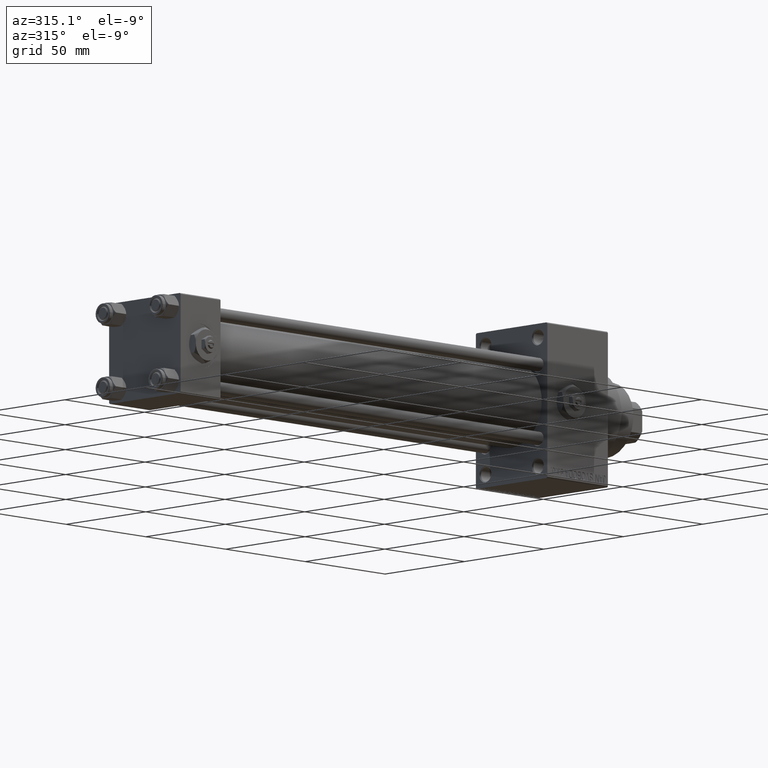
[diagram: clean part render]
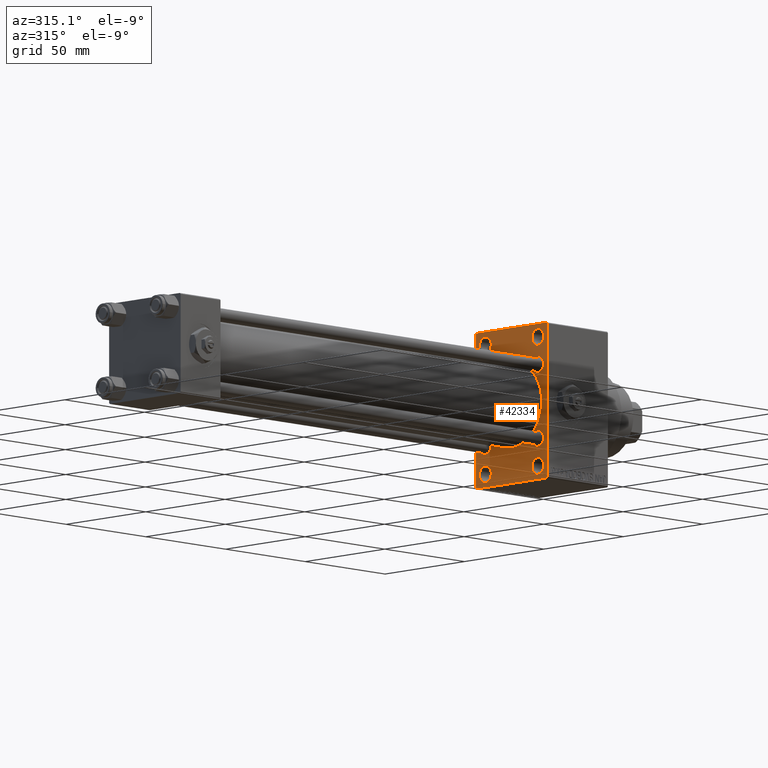
[diagram: same view with one face highlighted and labeled with its STEP entity id]
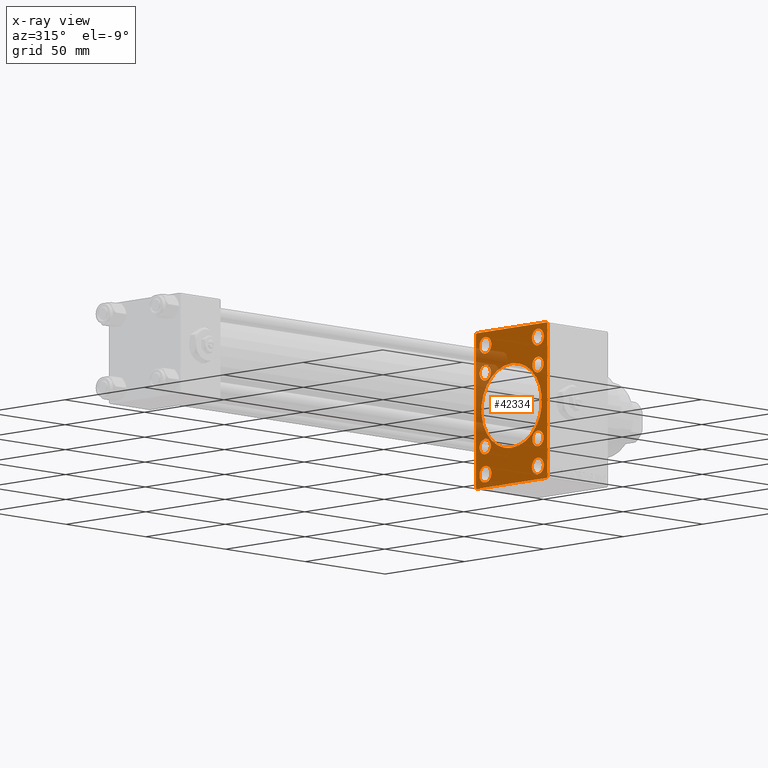
[diagram: x-ray of the same camera — body ghosted, the highlighted face saturated]
A machine part, auxiliary view. The second image highlights one B-rep face of the part: STEP entity #42334.
The next image is the same camera in x-ray: the body ghosted, the highlighted face saturated — about 18% of this face is hidden behind the body in this view.
In plain terms, the highlighted planar face has unit normal (-1, 0, 0).
Its self-contained STEP definition (entity closure, byte-faithful):
#86 = ORIENTED_EDGE ( 'NONE', *, *, #27091, .T. ) ;
#116 = VERTEX_POINT ( 'NONE', #18968 ) ;
#410 = CIRCLE ( 'NONE', #8321, 3.500000000000006661 ) ;
#741 = CARTESIAN_POINT ( 'NONE',  ( 229.9999999999999716, 16.50000000000000000, -32.75000000000000000 ) ) ;
#941 = AXIS2_PLACEMENT_3D ( 'NONE', #19280, #34420, #23506 ) ;
#1089 = VERTEX_POINT ( 'NONE', #19767 ) ;
#1310 = AXIS2_PLACEMENT_3D ( 'NONE', #16715, #47716, #6275 ) ;
#1325 = VERTEX_POINT ( 'NONE', #26838 ) ;
#1372 = CARTESIAN_POINT ( 'NONE',  ( 229.9999999999999716, -16.50000000000000000, -32.75000000000000000 ) ) ;
#1467 = AXIS2_PLACEMENT_3D ( 'NONE', #43604, #24947, #32413 ) ;
#1630 = DIRECTION ( 'NONE',  ( 0.000000000000000000, 0.000000000000000000, 1.000000000000000000 ) ) ;
#1949 = CIRCLE ( 'NONE', #13828, 3.500000000000006661 ) ;
#2417 = CARTESIAN_POINT ( 'NONE',  ( 229.9999999999999716, 16.59999999999999787, -13.09999999999999787 ) ) ;
#2866 = DIRECTION ( 'NONE',  ( 0.000000000000000000, 0.000000000000000000, 1.000000000000000000 ) ) ;
#2958 = ORIENTED_EDGE ( 'NONE', *, *, #29056, .T. ) ;
#3118 = CARTESIAN_POINT ( 'NONE',  ( 229.9999999999999716, -2.602085213965210642E-15, 0.000000000000000000 ) ) ;
#3280 = FACE_BOUND ( 'NONE', #26616, .T. ) ;
#3448 = EDGE_CURVE ( 'NONE', #1325, #26371, #13008, .T. ) ;
#3525 = CARTESIAN_POINT ( 'NONE',  ( 229.9999999999999716, 0.000000000000000000, 0.000000000000000000 ) ) ;
#3601 = CARTESIAN_POINT ( 'NONE',  ( 229.9999999999999716, -16.50000000000000000, -25.24999999999998934 ) ) ;
#3615 = DIRECTION ( 'NONE',  ( 1.000000000000000000, 0.000000000000000000, 0.000000000000000000 ) ) ;
#4023 = CARTESIAN_POINT ( 'NONE',  ( 229.9999999999999716, 22.49999999999999645, -35.00000000000000000 ) ) ;
#4064 = EDGE_CURVE ( 'NONE', #34571, #7113, #410, .T. ) ;
#4765 = ORIENTED_EDGE ( 'NONE', *, *, #26668, .T. ) ;
#4782 = DIRECTION ( 'NONE',  ( 1.000000000000000000, 0.000000000000000000, 0.000000000000000000 ) ) ;
#4887 = ORIENTED_EDGE ( 'NONE', *, *, #30488, .T. ) ;
#5295 = CIRCLE ( 'NONE', #39370, 3.750000000000006661 ) ;
#5297 = CARTESIAN_POINT ( 'NONE',  ( 229.9999999999999716, 16.59999999999999787, 16.60000000000000497 ) ) ;
#5397 = DIRECTION ( 'NONE',  ( 1.000000000000000000, 0.000000000000000000, 0.000000000000000000 ) ) ;
#6117 = DIRECTION ( 'NONE',  ( 0.000000000000000000, 0.000000000000000000, -1.000000000000000000 ) ) ;
#6275 = DIRECTION ( 'NONE',  ( 0.000000000000000000, 0.000000000000000000, 1.000000000000000000 ) ) ;
#6303 = CIRCLE ( 'NONE', #34018, 3.750000000000006661 ) ;
#6507 = PLANE ( 'NONE',  #40141 ) ;
#6664 = CIRCLE ( 'NONE', #8227, 3.500000000000006661 ) ;
#6841 = EDGE_CURVE ( 'NONE', #37190, #26652, #35355, .T. ) ;
#7080 = EDGE_CURVE ( 'NONE', #17468, #8272, #41266, .T. ) ;
#7113 = VERTEX_POINT ( 'NONE', #13195 ) ;
#7602 = EDGE_CURVE ( 'NONE', #32540, #17468, #40435, .T. ) ;
#7744 = EDGE_CURVE ( 'NONE', #20881, #12036, #5295, .T. ) ;
#8133 = AXIS2_PLACEMENT_3D ( 'NONE', #36339, #47985, #17477 ) ;
#8136 = CARTESIAN_POINT ( 'NONE',  ( 229.9999999999999716, -16.50000000000000000, -28.99999999999999289 ) ) ;
#8227 = AXIS2_PLACEMENT_3D ( 'NONE', #5297, #27856, #20413 ) ;
#8272 = VERTEX_POINT ( 'NONE', #14970 ) ;
#8321 = AXIS2_PLACEMENT_3D ( 'NONE', #47800, #36858, #2866 ) ;
#8480 = AXIS2_PLACEMENT_3D ( 'NONE', #18343, #11148, #14130 ) ;
#8792 = CARTESIAN_POINT ( 'NONE',  ( 229.9999999999999716, -16.50000000000000000, 29.00000000000000711 ) ) ;
#8892 = ORIENTED_EDGE ( 'NONE', *, *, #6841, .T. ) ;
#9038 = DIRECTION ( 'NONE',  ( 1.000000000000000000, 0.000000000000000000, 0.000000000000000000 ) ) ;
#9250 = VECTOR ( 'NONE', #21796, 1000.000000000000000 ) ;
#9257 = CARTESIAN_POINT ( 'NONE',  ( 229.9999999999999716, -16.59999999999999076, 13.10000000000000142 ) ) ;
#9288 = DIRECTION ( 'NONE',  ( 0.000000000000000000, 0.7071067811865672237, -0.7071067811865279218 ) ) ;
#9446 = EDGE_CURVE ( 'NONE', #7113, #34571, #40216, .T. ) ;
#10008 = EDGE_LOOP ( 'NONE', ( #47430, #22955 ) ) ;
#10070 = CARTESIAN_POINT ( 'NONE',  ( 229.9999999999999716, -16.50000000000000000, 29.00000000000000711 ) ) ;
#10231 = FACE_BOUND ( 'NONE', #16148, .T. ) ;
#10384 = DIRECTION ( 'NONE',  ( -0.000000000000000000, 0.7071067811865279218, 0.7071067811865672237 ) ) ;
#10793 = VERTEX_POINT ( 'NONE', #41673 ) ;
#11148 = DIRECTION ( 'NONE',  ( 1.000000000000000000, 0.000000000000000000, 0.000000000000000000 ) ) ;
#11649 = LINE ( 'NONE', #23565, #19265 ) ;
#11716 = DIRECTION ( 'NONE',  ( 0.000000000000000000, 0.000000000000000000, 1.000000000000000000 ) ) ;
#11995 = EDGE_CURVE ( 'NONE', #37916, #38535, #40282, .T. ) ;
#12018 = AXIS2_PLACEMENT_3D ( 'NONE', #27906, #43796, #1630 ) ;
#12036 = VERTEX_POINT ( 'NONE', #3601 ) ;
#12086 = AXIS2_PLACEMENT_3D ( 'NONE', #10070, #4782, #46199 ) ;
#12996 = CARTESIAN_POINT ( 'NONE',  ( 229.9999999999999716, -2.752562955852400657E-16, -19.00000000000000000 ) ) ;
#13008 = LINE ( 'NONE', #28140, #18573 ) ;
#13097 = AXIS2_PLACEMENT_3D ( 'NONE', #3118, #3615, #18737 ) ;
#13195 = CARTESIAN_POINT ( 'NONE',  ( 229.9999999999999716, 16.59999999999999787, -20.10000000000000853 ) ) ;
#13828 = AXIS2_PLACEMENT_3D ( 'NONE', #37259, #21860, #40736 ) ;
#13870 = ORIENTED_EDGE ( 'NONE', *, *, #4064, .T. ) ;
#13937 = AXIS2_PLACEMENT_3D ( 'NONE', #8792, #9038, #24655 ) ;
#14130 = DIRECTION ( 'NONE',  ( 0.000000000000000000, 0.000000000000000000, 1.000000000000000000 ) ) ;
#14332 = EDGE_CURVE ( 'NONE', #46761, #10793, #6303, .T. ) ;
#14486 = AXIS2_PLACEMENT_3D ( 'NONE', #47081, #36390, #6117 ) ;
#14670 = FACE_BOUND ( 'NONE', #34129, .T. ) ;
#14916 = DIRECTION ( 'NONE',  ( -1.000000000000000000, 0.000000000000000000, -0.000000000000000000 ) ) ;
#14970 = CARTESIAN_POINT ( 'NONE',  ( 229.9999999999999716, -21.99999999999996092, -35.00000000000000000 ) ) ;
#15204 = CIRCLE ( 'NONE', #12018, 3.750000000000003553 ) ;
#16148 = EDGE_LOOP ( 'NONE', ( #2958, #31826 ) ) ;
#16298 = CARTESIAN_POINT ( 'NONE',  ( 229.9999999999999716, 16.50000000000000000, -28.99999999999999289 ) ) ;
#16331 = ORIENTED_EDGE ( 'NONE', *, *, #7744, .T. ) ;
#16405 = ORIENTED_EDGE ( 'NONE', *, *, #3448, .T. ) ;
#16715 = CARTESIAN_POINT ( 'NONE',  ( 229.9999999999999716, -16.50000000000000000, -28.99999999999999289 ) ) ;
#16924 = CARTESIAN_POINT ( 'NONE',  ( 229.9999999999999716, -22.50000000000000355, 34.49999999999997158 ) ) ;
#17468 = VERTEX_POINT ( 'NONE', #42583 ) ;
#17477 = DIRECTION ( 'NONE',  ( 0.000000000000000000, 0.000000000000000000, 1.000000000000000000 ) ) ;
#18052 = EDGE_CURVE ( 'NONE', #26371, #32540, #19616, .T. ) ;
#18343 = CARTESIAN_POINT ( 'NONE',  ( 229.9999999999999716, 16.50000000000000000, -28.99999999999999289 ) ) ;
#18379 = CARTESIAN_POINT ( 'NONE',  ( 229.9999999999999716, -16.59999999999999076, -20.10000000000001208 ) ) ;
#18573 = VECTOR ( 'NONE', #9288, 1000.000000000000000 ) ;
#18737 = DIRECTION ( 'NONE',  ( 0.000000000000000000, 0.000000000000000000, -1.000000000000000000 ) ) ;
#18904 = DIRECTION ( 'NONE',  ( 1.000000000000000000, 0.000000000000000000, 0.000000000000000000 ) ) ;
#18968 = CARTESIAN_POINT ( 'NONE',  ( 229.9999999999999716, 16.59999999999999787, 13.09999999999999609 ) ) ;
#19125 = CIRCLE ( 'NONE', #941, 3.500000000000006661 ) ;
#19265 = VECTOR ( 'NONE', #23809, 1000.000000000000000 ) ;
#19280 = CARTESIAN_POINT ( 'NONE',  ( 229.9999999999999716, -16.59999999999999076, -16.60000000000000853 ) ) ;
#19481 = CIRCLE ( 'NONE', #1310, 3.750000000000006661 ) ;
#19616 = LINE ( 'NONE', #30049, #31653 ) ;
#19767 = CARTESIAN_POINT ( 'NONE',  ( 229.9999999999999716, -16.59999999999999076, 20.10000000000001208 ) ) ;
#20053 = CIRCLE ( 'NONE', #14486, 19.00000000000000000 ) ;
#20413 = DIRECTION ( 'NONE',  ( 0.000000000000000000, 0.000000000000000000, 1.000000000000000000 ) ) ;
#20767 = CARTESIAN_POINT ( 'NONE',  ( 229.9999999999999716, -16.50000000000000000, 32.75000000000001421 ) ) ;
#20810 = CARTESIAN_POINT ( 'NONE',  ( 229.9999999999999716, 16.50000000000000000, 25.25000000000000000 ) ) ;
#20881 = VERTEX_POINT ( 'NONE', #1372 ) ;
#21019 = EDGE_LOOP ( 'NONE', ( #4765, #26604 ) ) ;
#21263 = EDGE_LOOP ( 'NONE', ( #39560, #29970 ) ) ;
#21796 = DIRECTION ( 'NONE',  ( -0.000000000000000000, -0.7071067811865279218, -0.7071067811865672237 ) ) ;
#21835 = AXIS2_PLACEMENT_3D ( 'NONE', #30085, #45715, #11716 ) ;
#21860 = DIRECTION ( 'NONE',  ( 1.000000000000000000, 0.000000000000000000, 0.000000000000000000 ) ) ;
#22047 = ORIENTED_EDGE ( 'NONE', *, *, #11995, .T. ) ;
#22057 = DIRECTION ( 'NONE',  ( 0.000000000000000000, 0.000000000000000000, -1.000000000000000000 ) ) ;
#22369 = FACE_OUTER_BOUND ( 'NONE', #30637, .T. ) ;
#22537 = AXIS2_PLACEMENT_3D ( 'NONE', #34039, #18904, #45454 ) ;
#22750 = VERTEX_POINT ( 'NONE', #36439 ) ;
#22955 = ORIENTED_EDGE ( 'NONE', *, *, #38645, .T. ) ;
#23096 = CARTESIAN_POINT ( 'NONE',  ( 229.9999999999999716, -21.99999999999998934, 35.00000000000000000 ) ) ;
#23222 = CARTESIAN_POINT ( 'NONE',  ( 229.9999999999999716, 16.50000000000000000, 32.75000000000000711 ) ) ;
#23506 = DIRECTION ( 'NONE',  ( 0.000000000000000000, 0.000000000000000000, 1.000000000000000000 ) ) ;
#23565 = CARTESIAN_POINT ( 'NONE',  ( 229.9999999999999716, -28.49999999999937828, -28.50000000000096279 ) ) ;
#23809 = DIRECTION ( 'NONE',  ( 0.000000000000000000, -0.7071067811865672237, 0.7071067811865279218 ) ) ;
#23850 = EDGE_CURVE ( 'NONE', #22750, #29135, #19125, .T. ) ;
#24107 = EDGE_CURVE ( 'NONE', #38535, #37916, #15204, .T. ) ;
#24655 = DIRECTION ( 'NONE',  ( 0.000000000000000000, 0.000000000000000000, 1.000000000000000000 ) ) ;
#24947 = DIRECTION ( 'NONE',  ( 1.000000000000000000, 0.000000000000000000, 0.000000000000000000 ) ) ;
#25352 = FACE_BOUND ( 'NONE', #21263, .T. ) ;
#25692 = ORIENTED_EDGE ( 'NONE', *, *, #33464, .F. ) ;
#25770 = LINE ( 'NONE', #33227, #48764 ) ;
#25963 = EDGE_CURVE ( 'NONE', #26652, #37190, #29489, .T. ) ;
#26371 = VERTEX_POINT ( 'NONE', #32481 ) ;
#26604 = ORIENTED_EDGE ( 'NONE', *, *, #40525, .T. ) ;
#26616 = EDGE_LOOP ( 'NONE', ( #30146, #8892 ) ) ;
#26652 = VERTEX_POINT ( 'NONE', #20767 ) ;
#26668 = EDGE_CURVE ( 'NONE', #35294, #44513, #20053, .T. ) ;
#26838 = CARTESIAN_POINT ( 'NONE',  ( 229.9999999999999716, 21.99999999999996803, 35.00000000000000000 ) ) ;
#27091 = EDGE_CURVE ( 'NONE', #8272, #48540, #11649, .T. ) ;
#27138 = VECTOR ( 'NONE', #10384, 1000.000000000000000 ) ;
#27856 = DIRECTION ( 'NONE',  ( 1.000000000000000000, 0.000000000000000000, 0.000000000000000000 ) ) ;
#27906 = CARTESIAN_POINT ( 'NONE',  ( 229.9999999999999716, 16.50000000000000000, 29.00000000000000355 ) ) ;
#27950 = DIRECTION ( 'NONE',  ( 0.000000000000000000, 0.000000000000000000, 1.000000000000000000 ) ) ;
#28140 = CARTESIAN_POINT ( 'NONE',  ( 229.9999999999999716, 28.49999999999937472, 28.50000000000095923 ) ) ;
#29056 = EDGE_CURVE ( 'NONE', #40973, #116, #6664, .T. ) ;
#29135 = VERTEX_POINT ( 'NONE', #18379 ) ;
#29489 = CIRCLE ( 'NONE', #12086, 3.750000000000000000 ) ;
#29725 = DIRECTION ( 'NONE',  ( 0.000000000000000000, 0.000000000000000000, 1.000000000000000000 ) ) ;
#29801 = FACE_BOUND ( 'NONE', #34553, .T. ) ;
#29868 = EDGE_CURVE ( 'NONE', #1089, #48269, #42470, .T. ) ;
#29970 = ORIENTED_EDGE ( 'NONE', *, *, #14332, .T. ) ;
#30049 = CARTESIAN_POINT ( 'NONE',  ( 229.9999999999999716, 22.49999999999999645, 35.00000000000000000 ) ) ;
#30085 = CARTESIAN_POINT ( 'NONE',  ( 229.9999999999999716, -16.59999999999999076, 16.60000000000000853 ) ) ;
#30146 = ORIENTED_EDGE ( 'NONE', *, *, #25963, .T. ) ;
#30488 = EDGE_CURVE ( 'NONE', #48269, #1089, #44037, .T. ) ;
#30637 = EDGE_LOOP ( 'NONE', ( #31630, #86, #31301, #37876, #25692, #16405, #47781, #40901 ) ) ;
#31047 = EDGE_CURVE ( 'NONE', #39830, #42447, #33210, .T. ) ;
#31301 = ORIENTED_EDGE ( 'NONE', *, *, #37517, .F. ) ;
#31401 = VECTOR ( 'NONE', #41515, 1000.000000000000000 ) ;
#31630 = ORIENTED_EDGE ( 'NONE', *, *, #7080, .T. ) ;
#31653 = VECTOR ( 'NONE', #45679, 1000.000000000000000 ) ;
#31774 = CARTESIAN_POINT ( 'NONE',  ( 229.9999999999999716, -2.602085213965210642E-15, 19.00000000000000000 ) ) ;
#31826 = ORIENTED_EDGE ( 'NONE', *, *, #35012, .T. ) ;
#32413 = DIRECTION ( 'NONE',  ( 0.000000000000000000, 0.000000000000000000, 1.000000000000000000 ) ) ;
#32449 = CARTESIAN_POINT ( 'NONE',  ( 229.9999999999999716, -22.50000000000000355, -34.50000000000000000 ) ) ;
#32481 = CARTESIAN_POINT ( 'NONE',  ( 229.9999999999999716, 22.49999999999999645, 34.50000000000000000 ) ) ;
#32540 = VERTEX_POINT ( 'NONE', #43313 ) ;
#33210 = LINE ( 'NONE', #36693, #27138 ) ;
#33227 = CARTESIAN_POINT ( 'NONE',  ( 229.9999999999999716, -22.50000000000000355, 35.00000000000000000 ) ) ;
#33464 = EDGE_CURVE ( 'NONE', #1325, #42447, #47283, .T. ) ;
#34018 = AXIS2_PLACEMENT_3D ( 'NONE', #16298, #5397, #27950 ) ;
#34039 = CARTESIAN_POINT ( 'NONE',  ( 229.9999999999999716, -16.59999999999999076, -16.60000000000000853 ) ) ;
#34129 = EDGE_LOOP ( 'NONE', ( #43995, #4887 ) ) ;
#34420 = DIRECTION ( 'NONE',  ( 1.000000000000000000, 0.000000000000000000, 0.000000000000000000 ) ) ;
#34465 = CIRCLE ( 'NONE', #13097, 19.00000000000000000 ) ;
#34553 = EDGE_LOOP ( 'NONE', ( #13870, #36864 ) ) ;
#34562 = DIRECTION ( 'NONE',  ( 0.000000000000000000, 0.000000000000000000, 1.000000000000000000 ) ) ;
#34571 = VERTEX_POINT ( 'NONE', #2417 ) ;
#34644 = CIRCLE ( 'NONE', #8480, 3.750000000000006661 ) ;
#35012 = EDGE_CURVE ( 'NONE', #116, #40973, #1949, .T. ) ;
#35294 = VERTEX_POINT ( 'NONE', #31774 ) ;
#35355 = CIRCLE ( 'NONE', #13937, 3.750000000000000000 ) ;
#36339 = CARTESIAN_POINT ( 'NONE',  ( 229.9999999999999716, -16.59999999999999076, 16.60000000000000853 ) ) ;
#36390 = DIRECTION ( 'NONE',  ( 1.000000000000000000, 0.000000000000000000, 0.000000000000000000 ) ) ;
#36439 = CARTESIAN_POINT ( 'NONE',  ( 229.9999999999999716, -16.59999999999999076, -13.10000000000000142 ) ) ;
#36693 = CARTESIAN_POINT ( 'NONE',  ( 229.9999999999999716, -28.50000000000061462, 28.49999999999903011 ) ) ;
#36858 = DIRECTION ( 'NONE',  ( 1.000000000000000000, 0.000000000000000000, 0.000000000000000000 ) ) ;
#36864 = ORIENTED_EDGE ( 'NONE', *, *, #9446, .T. ) ;
#37190 = VERTEX_POINT ( 'NONE', #38242 ) ;
#37259 = CARTESIAN_POINT ( 'NONE',  ( 229.9999999999999716, 16.59999999999999787, 16.60000000000000497 ) ) ;
#37517 = EDGE_CURVE ( 'NONE', #39830, #48540, #25770, .T. ) ;
#37876 = ORIENTED_EDGE ( 'NONE', *, *, #31047, .T. ) ;
#37916 = VERTEX_POINT ( 'NONE', #23222 ) ;
#38213 = CARTESIAN_POINT ( 'NONE',  ( 229.9999999999999716, 16.59999999999999787, 20.10000000000001208 ) ) ;
#38242 = CARTESIAN_POINT ( 'NONE',  ( 229.9999999999999716, -16.50000000000000000, 25.25000000000000355 ) ) ;
#38412 = DIRECTION ( 'NONE',  ( 1.000000000000000000, 0.000000000000000000, 0.000000000000000000 ) ) ;
#38535 = VERTEX_POINT ( 'NONE', #20810 ) ;
#38548 = DIRECTION ( 'NONE',  ( 1.000000000000000000, 0.000000000000000000, 0.000000000000000000 ) ) ;
#38645 = EDGE_CURVE ( 'NONE', #29135, #22750, #46311, .T. ) ;
#39058 = CARTESIAN_POINT ( 'NONE',  ( 229.9999999999999716, 16.59999999999999787, -16.60000000000000497 ) ) ;
#39370 = AXIS2_PLACEMENT_3D ( 'NONE', #8136, #38412, #29725 ) ;
#39560 = ORIENTED_EDGE ( 'NONE', *, *, #44916, .T. ) ;
#39830 = VERTEX_POINT ( 'NONE', #16924 ) ;
#40141 = AXIS2_PLACEMENT_3D ( 'NONE', #3525, #14916, #45205 ) ;
#40216 = CIRCLE ( 'NONE', #41795, 3.500000000000006661 ) ;
#40282 = CIRCLE ( 'NONE', #1467, 3.750000000000003553 ) ;
#40435 = LINE ( 'NONE', #40914, #9250 ) ;
#40525 = EDGE_CURVE ( 'NONE', #44513, #35294, #34465, .T. ) ;
#40736 = DIRECTION ( 'NONE',  ( 0.000000000000000000, 0.000000000000000000, 1.000000000000000000 ) ) ;
#40901 = ORIENTED_EDGE ( 'NONE', *, *, #7602, .T. ) ;
#40914 = CARTESIAN_POINT ( 'NONE',  ( 229.9999999999999716, 28.50000000000060751, -28.49999999999902656 ) ) ;
#40973 = VERTEX_POINT ( 'NONE', #38213 ) ;
#41266 = LINE ( 'NONE', #4023, #31401 ) ;
#41515 = DIRECTION ( 'NONE',  ( 0.000000000000000000, -1.000000000000000000, 0.000000000000000000 ) ) ;
#41673 = CARTESIAN_POINT ( 'NONE',  ( 229.9999999999999716, 16.50000000000000000, -25.24999999999998934 ) ) ;
#41715 = ORIENTED_EDGE ( 'NONE', *, *, #24107, .T. ) ;
#41795 = AXIS2_PLACEMENT_3D ( 'NONE', #39058, #38548, #34562 ) ;
#42268 = EDGE_CURVE ( 'NONE', #12036, #20881, #19481, .T. ) ;
#42334 = ADVANCED_FACE ( 'NONE', ( #3280, #44951, #25352, #48683, #14670, #10231, #29801, #44228, #48933, #22369 ), #6507, .T. ) ;
#42447 = VERTEX_POINT ( 'NONE', #23096 ) ;
#42470 = CIRCLE ( 'NONE', #21835, 3.500000000000003109 ) ;
#42583 = CARTESIAN_POINT ( 'NONE',  ( 229.9999999999999716, 21.99999999999999645, -35.00000000000000000 ) ) ;
#42819 = CARTESIAN_POINT ( 'NONE',  ( 229.9999999999999716, 22.49999999999999645, 35.00000000000000000 ) ) ;
#43313 = CARTESIAN_POINT ( 'NONE',  ( 229.9999999999999716, 22.49999999999999645, -34.49999999999997158 ) ) ;
#43559 = EDGE_LOOP ( 'NONE', ( #45440, #16331 ) ) ;
#43569 = DIRECTION ( 'NONE',  ( 0.000000000000000000, -1.000000000000000000, 0.000000000000000000 ) ) ;
#43604 = CARTESIAN_POINT ( 'NONE',  ( 229.9999999999999716, 16.50000000000000000, 29.00000000000000355 ) ) ;
#43796 = DIRECTION ( 'NONE',  ( 1.000000000000000000, 0.000000000000000000, 0.000000000000000000 ) ) ;
#43995 = ORIENTED_EDGE ( 'NONE', *, *, #29868, .T. ) ;
#44037 = CIRCLE ( 'NONE', #8133, 3.500000000000003109 ) ;
#44228 = FACE_BOUND ( 'NONE', #10008, .T. ) ;
#44513 = VERTEX_POINT ( 'NONE', #12996 ) ;
#44640 = VECTOR ( 'NONE', #43569, 1000.000000000000000 ) ;
#44916 = EDGE_CURVE ( 'NONE', #10793, #46761, #34644, .T. ) ;
#44951 = FACE_BOUND ( 'NONE', #43559, .T. ) ;
#45205 = DIRECTION ( 'NONE',  ( -0.000000000000000000, 0.000000000000000000, 1.000000000000000000 ) ) ;
#45440 = ORIENTED_EDGE ( 'NONE', *, *, #42268, .T. ) ;
#45454 = DIRECTION ( 'NONE',  ( 0.000000000000000000, 0.000000000000000000, 1.000000000000000000 ) ) ;
#45679 = DIRECTION ( 'NONE',  ( 0.000000000000000000, 0.000000000000000000, -1.000000000000000000 ) ) ;
#45715 = DIRECTION ( 'NONE',  ( 1.000000000000000000, 0.000000000000000000, 0.000000000000000000 ) ) ;
#45999 = EDGE_LOOP ( 'NONE', ( #22047, #41715 ) ) ;
#46199 = DIRECTION ( 'NONE',  ( 0.000000000000000000, 0.000000000000000000, 1.000000000000000000 ) ) ;
#46311 = CIRCLE ( 'NONE', #22537, 3.500000000000006661 ) ;
#46761 = VERTEX_POINT ( 'NONE', #741 ) ;
#47081 = CARTESIAN_POINT ( 'NONE',  ( 229.9999999999999716, -2.602085213965210642E-15, 0.000000000000000000 ) ) ;
#47283 = LINE ( 'NONE', #42819, #44640 ) ;
#47430 = ORIENTED_EDGE ( 'NONE', *, *, #23850, .T. ) ;
#47716 = DIRECTION ( 'NONE',  ( 1.000000000000000000, 0.000000000000000000, 0.000000000000000000 ) ) ;
#47781 = ORIENTED_EDGE ( 'NONE', *, *, #18052, .T. ) ;
#47800 = CARTESIAN_POINT ( 'NONE',  ( 229.9999999999999716, 16.59999999999999787, -16.60000000000000497 ) ) ;
#47985 = DIRECTION ( 'NONE',  ( 1.000000000000000000, 0.000000000000000000, 0.000000000000000000 ) ) ;
#48269 = VERTEX_POINT ( 'NONE', #9257 ) ;
#48540 = VERTEX_POINT ( 'NONE', #32449 ) ;
#48683 = FACE_BOUND ( 'NONE', #45999, .T. ) ;
#48764 = VECTOR ( 'NONE', #22057, 1000.000000000000000 ) ;
#48933 = FACE_BOUND ( 'NONE', #21019, .T. ) ;